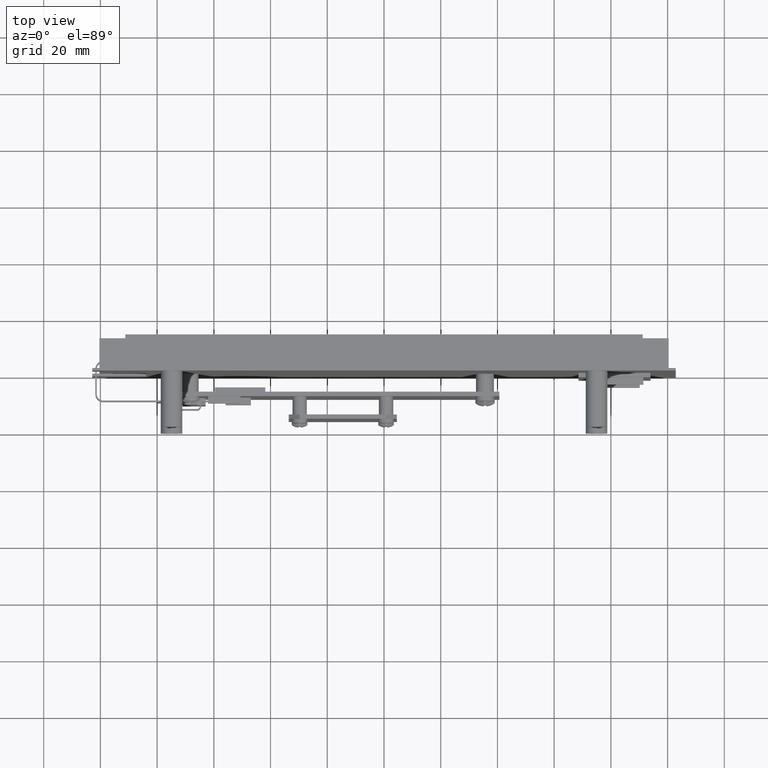
[diagram: clean part render]
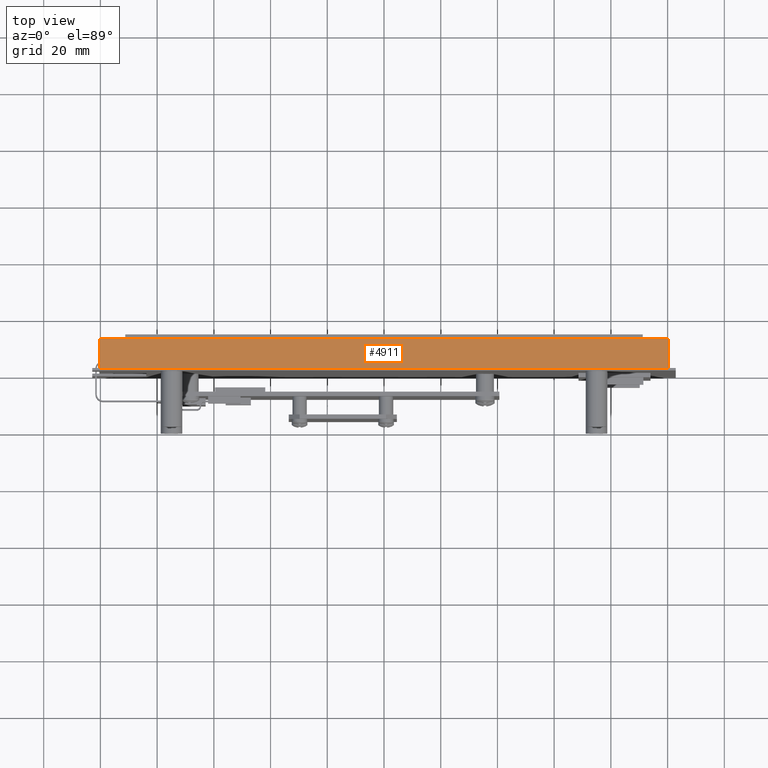
[diagram: same view with one face highlighted and labeled with its STEP entity id]
A machine part, top view. The second image highlights one B-rep face of the part: STEP entity #4911.
In plain terms, the highlighted planar face has unit normal (0, 0, -1).
Its self-contained STEP definition (entity closure, byte-faithful):
#695 = CARTESIAN_POINT ( 'NONE',  ( -3.951000000000000100, 0.0000000000000000000, 2.995000000000000100 ) ) ;
#704 = DIRECTION ( 'NONE',  ( -1.000000000000000000, -0.0000000000000000000, -0.0000000000000000000 ) ) ;
#2548 = LINE ( 'NONE', #4024, #2551 ) ;
#2551 = VECTOR ( 'NONE', #4025, 39.37007874015748100 ) ;
#2554 = LINE ( 'NONE', #4029, #2557 ) ;
#2557 = VECTOR ( 'NONE', #4030, 39.37007874015748100 ) ;
#2568 = LINE ( 'NONE', #4042, #2571 ) ;
#2571 = VECTOR ( 'NONE', #4043, 39.37007874015748100 ) ;
#4024 = CARTESIAN_POINT ( 'NONE',  ( -3.951000000000000100, -0.4130000000000000300, 2.995000000000000100 ) ) ;
#4025 = DIRECTION ( 'NONE',  ( -1.000000000000000000, -0.0000000000000000000, -0.0000000000000000000 ) ) ;
#4029 = CARTESIAN_POINT ( 'NONE',  ( -3.951000000000000100, -0.4130000000000000300, 2.995000000000000100 ) ) ;
#4030 = DIRECTION ( 'NONE',  ( -0.0000000000000000000, 1.000000000000000000, -0.0000000000000000000 ) ) ;
#4042 = CARTESIAN_POINT ( 'NONE',  ( 3.951000000000000100, -0.4130000000000000300, 2.995000000000000100 ) ) ;
#4043 = DIRECTION ( 'NONE',  ( -0.0000000000000000000, 1.000000000000000000, -0.0000000000000000000 ) ) ;
#4911 = ADVANCED_FACE ( 'NONE', ( #7983 ), #14777, .F. ) ;
#5529 = VERTEX_POINT ( 'NONE', #20305 ) ;
#5701 = VERTEX_POINT ( 'NONE', #20328 ) ;
#5736 = VERTEX_POINT ( 'NONE', #20339 ) ;
#5777 = VERTEX_POINT ( 'NONE', #20346 ) ;
#6107 = EDGE_CURVE ( 'NONE', #5736, #5529, #9851, .T. ) ;
#7983 = FACE_OUTER_BOUND ( 'NONE', #13383, .T. ) ;
#8202 = AXIS2_PLACEMENT_3D ( 'NONE', #14774, #14779, #14780 ) ;
#9851 = LINE ( 'NONE', #695, #9856 ) ;
#9856 = VECTOR ( 'NONE', #704, 39.37007874015748100 ) ;
#13248 = ORIENTED_EDGE ( 'NONE', *, *, #13671, .T. ) ;
#13249 = ORIENTED_EDGE ( 'NONE', *, *, #13661, .F. ) ;
#13250 = ORIENTED_EDGE ( 'NONE', *, *, #13664, .F. ) ;
#13265 = ORIENTED_EDGE ( 'NONE', *, *, #6107, .T. ) ;
#13383 = EDGE_LOOP ( 'NONE', ( #13265, #13250, #13249, #13248 ) ) ;
#13661 = EDGE_CURVE ( 'NONE', #5777, #5701, #2548, .T. ) ;
#13664 = EDGE_CURVE ( 'NONE', #5701, #5529, #2554, .T. ) ;
#13671 = EDGE_CURVE ( 'NONE', #5777, #5736, #2568, .T. ) ;
#14774 = CARTESIAN_POINT ( 'NONE',  ( -3.951000000000000100, -0.4130000000000000300, 2.995000000000000100 ) ) ;
#14777 = PLANE ( 'NONE',  #8202 ) ;
#14779 = DIRECTION ( 'NONE',  ( 0.0000000000000000000, 0.0000000000000000000, -1.000000000000000000 ) ) ;
#14780 = DIRECTION ( 'NONE',  ( -1.000000000000000000, 0.0000000000000000000, -0.0000000000000000000 ) ) ;
#20305 = CARTESIAN_POINT ( 'NONE',  ( -3.951000000000000100, 0.0000000000000000000, 2.995000000000000100 ) ) ;
#20328 = CARTESIAN_POINT ( 'NONE',  ( -3.951000000000000100, -0.4130000000000000300, 2.995000000000000100 ) ) ;
#20339 = CARTESIAN_POINT ( 'NONE',  ( 3.951000000000000100, 0.0000000000000000000, 2.995000000000000100 ) ) ;
#20346 = CARTESIAN_POINT ( 'NONE',  ( 3.951000000000000100, -0.4130000000000000300, 2.995000000000000100 ) ) ;